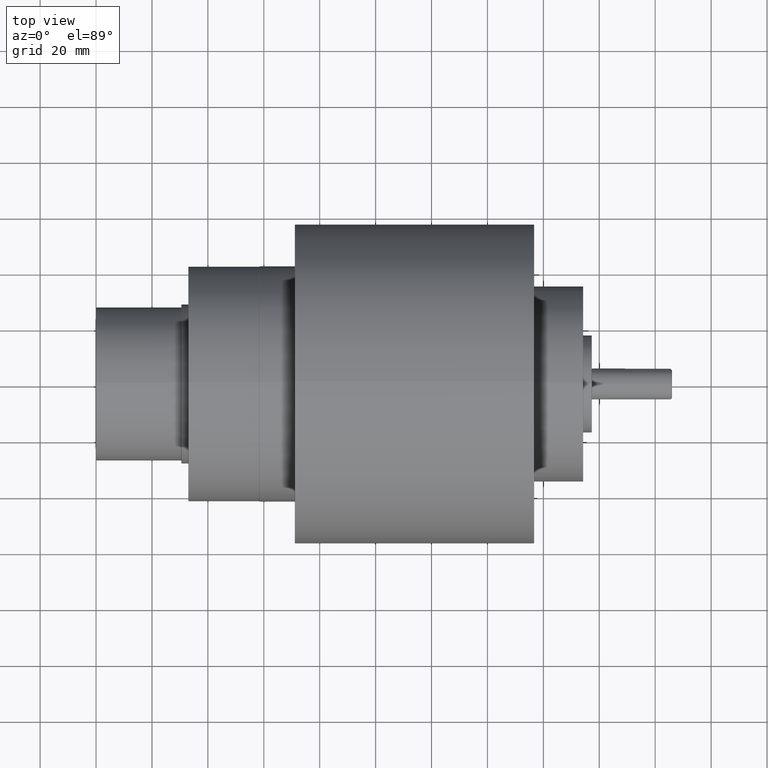
[diagram: clean part render]
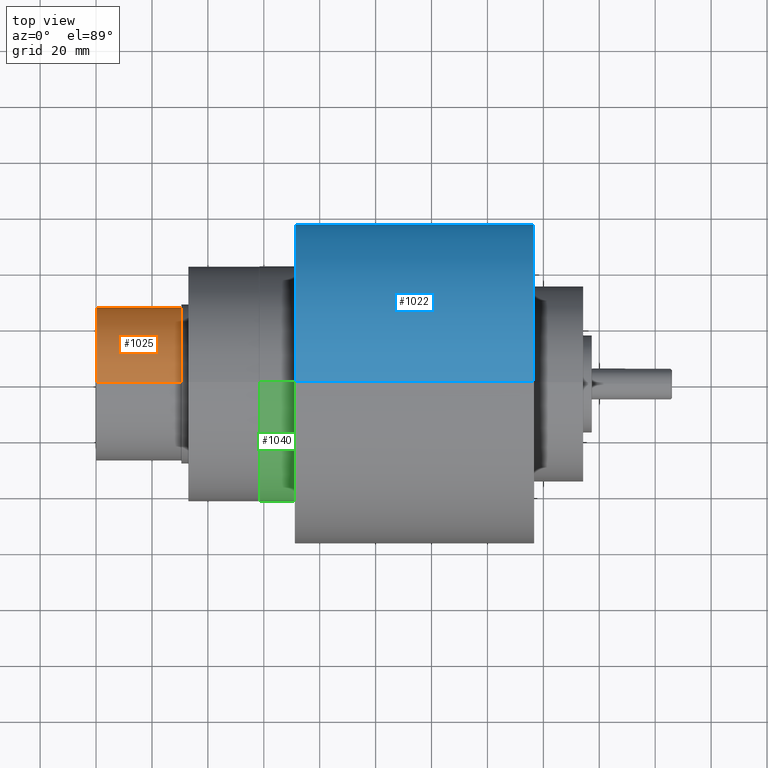
[diagram: same view with three faces highlighted in distinct colors, each labeled with its STEP entity id]
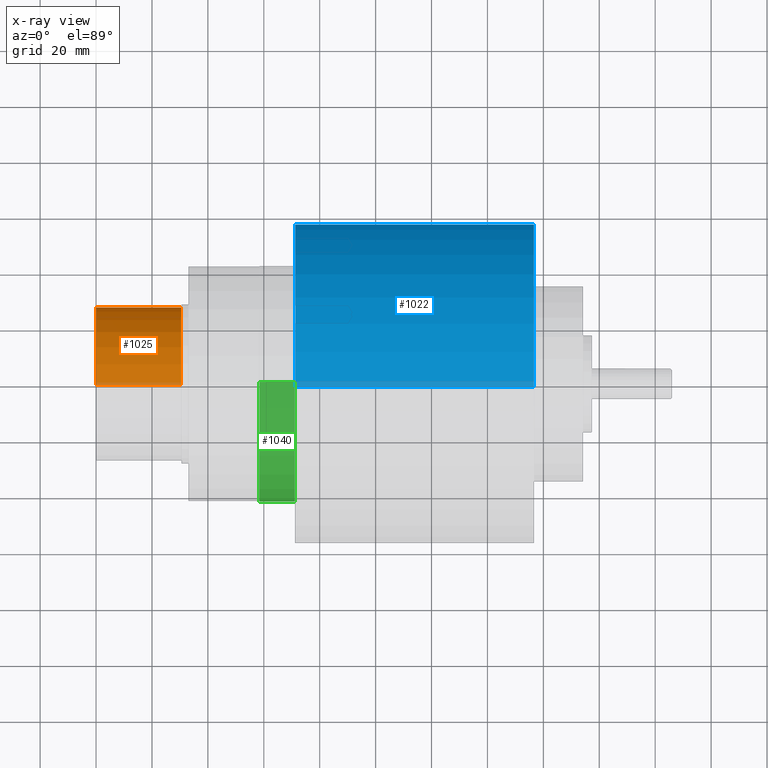
[diagram: x-ray of the same camera — body ghosted, the three highlighted faces saturated]
A machine part, top view with three faces highlighted in distinct colors.
The next image is the same camera in x-ray (body ghosted, the three faces saturated) — at least one of them is partly hidden behind the body in this view.
Their STEP definitions:

[orange] entity #1025 — the highlighted cylindrical surface (partial cylindrical patch) has radius 27.4955 mm, axis along (-1, -0, -0).
#3 = EDGE_CURVE ( 'NONE', #253, #288, #1199, .T. ) ;
#4 = EDGE_CURVE ( 'NONE', #254, #253, #1207, .T. ) ;
#5 = EDGE_CURVE ( 'NONE', #254, #287, #1203, .T. ) ;
#121 = CARTESIAN_POINT ( 'NONE',  ( 1.196000000000000200, 0.0000000000000000000, 1.082500000000000200 ) ) ;
#122 = CARTESIAN_POINT ( 'NONE',  ( 1.196000000000000200, 1.325680160077009700E-016, -1.082500000000000200 ) ) ;
#253 = VERTEX_POINT ( 'NONE', #122 ) ;
#254 = VERTEX_POINT ( 'NONE', #121 ) ;
#287 = VERTEX_POINT ( 'NONE', #1592 ) ;
#288 = VERTEX_POINT ( 'NONE', #1593 ) ;
#360 = CARTESIAN_POINT ( 'NONE',  ( 1.201000000000000100, 1.325680160077009700E-016, -1.082500000000000200 ) ) ;
#363 = DIRECTION ( 'NONE',  ( -1.000000000000000000, -0.0000000000000000000, -0.0000000000000000000 ) ) ;
#364 = CARTESIAN_POINT ( 'NONE',  ( 1.196000000000000200, 0.0000000000000000000, 0.0000000000000000000 ) ) ;
#365 = DIRECTION ( 'NONE',  ( -1.000000000000000000, 0.0000000000000000000, 0.0000000000000000000 ) ) ;
#366 = DIRECTION ( 'NONE',  ( 0.0000000000000000000, 0.0000000000000000000, 1.000000000000000000 ) ) ;
#367 = CARTESIAN_POINT ( 'NONE',  ( 1.201000000000000100, 0.0000000000000000000, 1.082500000000000200 ) ) ;
#368 = DIRECTION ( 'NONE',  ( -1.000000000000000000, -0.0000000000000000000, -0.0000000000000000000 ) ) ;
#571 = EDGE_CURVE ( 'NONE', #288, #287, #2240, .T. ) ;
#641 = AXIS2_PLACEMENT_3D ( 'NONE', #364, #365, #366 ) ;
#711 = EDGE_LOOP ( 'NONE', ( #866, #867, #868, #869 ) ) ;
#866 = ORIENTED_EDGE ( 'NONE', *, *, #4, .T. ) ;
#867 = ORIENTED_EDGE ( 'NONE', *, *, #3, .T. ) ;
#868 = ORIENTED_EDGE ( 'NONE', *, *, #571, .T. ) ;
#869 = ORIENTED_EDGE ( 'NONE', *, *, #5, .F. ) ;
#1025 = ADVANCED_FACE ( 'NONE', ( #2384 ), #2393, .T. ) ;
#1199 = LINE ( 'NONE', #360, #1202 ) ;
#1202 = VECTOR ( 'NONE', #363, 39.37007874015748100 ) ;
#1203 = LINE ( 'NONE', #367, #1208 ) ;
#1207 = CIRCLE ( 'NONE', #641, 1.082500000000000200 ) ;
#1208 = VECTOR ( 'NONE', #368, 39.37007874015748100 ) ;
#1436 = AXIS2_PLACEMENT_3D ( 'NONE', #1861, #1862, #1863 ) ;
#1511 = AXIS2_PLACEMENT_3D ( 'NONE', #2125, #2124, #2120 ) ;
#1592 = CARTESIAN_POINT ( 'NONE',  ( 0.004999999999999946300, 0.0000000000000000000, 1.082500000000000200 ) ) ;
#1593 = CARTESIAN_POINT ( 'NONE',  ( 0.004999999999999946300, 1.325680160077009700E-016, -1.082500000000000200 ) ) ;
#1861 = CARTESIAN_POINT ( 'NONE',  ( 0.004999999999999946300, 0.0000000000000000000, 0.0000000000000000000 ) ) ;
#1862 = DIRECTION ( 'NONE',  ( 1.000000000000000000, 0.0000000000000000000, 0.0000000000000000000 ) ) ;
#1863 = DIRECTION ( 'NONE',  ( 0.0000000000000000000, 0.0000000000000000000, -1.000000000000000000 ) ) ;
#2120 = DIRECTION ( 'NONE',  ( 0.0000000000000000000, 0.0000000000000000000, 1.000000000000000000 ) ) ;
#2124 = DIRECTION ( 'NONE',  ( -1.000000000000000000, -0.0000000000000000000, -0.0000000000000000000 ) ) ;
#2125 = CARTESIAN_POINT ( 'NONE',  ( 1.201000000000000100, 0.0000000000000000000, 0.0000000000000000000 ) ) ;
#2240 = CIRCLE ( 'NONE', #1436, 1.082500000000000200 ) ;
#2384 = FACE_OUTER_BOUND ( 'NONE', #711, .T. ) ;
#2393 = CYLINDRICAL_SURFACE ( 'NONE', #1511, 1.082500000000000200 ) ;

[blue] entity #1022 — the highlighted cylindrical surface (partial cylindrical patch) has radius 57.15 mm, axis along (-1, -0, -0).
#81 = DIRECTION ( 'NONE',  ( -1.000000000000000000, -0.0000000000000000000, -0.0000000000000000000 ) ) ;
#82 = CARTESIAN_POINT ( 'NONE',  ( 12.53396103067892900, 2.755455298081544800E-016, -2.250000000000000400 ) ) ;
#97 = CARTESIAN_POINT ( 'NONE',  ( 6.165000000000000900, 2.755455298081544800E-016, -2.250000000000000400 ) ) ;
#98 = CARTESIAN_POINT ( 'NONE',  ( 12.53396103067892900, 0.0000000000000000000, 2.250000000000000400 ) ) ;
#99 = DIRECTION ( 'NONE',  ( -1.000000000000000000, -0.0000000000000000000, -0.0000000000000000000 ) ) ;
#102 = CARTESIAN_POINT ( 'NONE',  ( 6.165000000000000900, 0.0000000000000000000, 2.250000000000000400 ) ) ;
#103 = CARTESIAN_POINT ( 'NONE',  ( 2.805000000000000200, 2.755455298081544800E-016, -2.250000000000000400 ) ) ;
#104 = CARTESIAN_POINT ( 'NONE',  ( 2.805000000000000200, 0.0000000000000000000, 2.250000000000000400 ) ) ;
#168 = EDGE_CURVE ( 'NONE', #273, #271, #1267, .T. ) ;
#172 = EDGE_CURVE ( 'NONE', #274, #272, #1275, .T. ) ;
#271 = VERTEX_POINT ( 'NONE', #104 ) ;
#272 = VERTEX_POINT ( 'NONE', #103 ) ;
#273 = VERTEX_POINT ( 'NONE', #102 ) ;
#274 = VERTEX_POINT ( 'NONE', #97 ) ;
#555 = EDGE_CURVE ( 'NONE', #272, #271, #2224, .T. ) ;
#569 = EDGE_CURVE ( 'NONE', #273, #274, #2238, .T. ) ;
#670 = EDGE_LOOP ( 'NONE', ( #854, #855, #856, #857 ) ) ;
#854 = ORIENTED_EDGE ( 'NONE', *, *, #569, .T. ) ;
#855 = ORIENTED_EDGE ( 'NONE', *, *, #172, .T. ) ;
#856 = ORIENTED_EDGE ( 'NONE', *, *, #555, .T. ) ;
#857 = ORIENTED_EDGE ( 'NONE', *, *, #168, .F. ) ;
#1022 = ADVANCED_FACE ( 'NONE', ( #2378 ), #2387, .T. ) ;
#1267 = LINE ( 'NONE', #98, #1274 ) ;
#1274 = VECTOR ( 'NONE', #99, 39.37007874015748100 ) ;
#1275 = LINE ( 'NONE', #82, #1276 ) ;
#1276 = VECTOR ( 'NONE', #81, 39.37007874015748100 ) ;
#1420 = AXIS2_PLACEMENT_3D ( 'NONE', #1813, #1814, #1815 ) ;
#1434 = AXIS2_PLACEMENT_3D ( 'NONE', #1855, #1856, #1857 ) ;
#1508 = AXIS2_PLACEMENT_3D ( 'NONE', #2116, #2115, #2111 ) ;
#1813 = CARTESIAN_POINT ( 'NONE',  ( 2.805000000000000200, 0.0000000000000000000, 0.0000000000000000000 ) ) ;
#1814 = DIRECTION ( 'NONE',  ( 1.000000000000000000, 0.0000000000000000000, 0.0000000000000000000 ) ) ;
#1815 = DIRECTION ( 'NONE',  ( 0.0000000000000000000, 0.0000000000000000000, -1.000000000000000000 ) ) ;
#1855 = CARTESIAN_POINT ( 'NONE',  ( 6.165000000000000900, 0.0000000000000000000, 0.0000000000000000000 ) ) ;
#1856 = DIRECTION ( 'NONE',  ( -1.000000000000000000, -0.0000000000000000000, -0.0000000000000000000 ) ) ;
#1857 = DIRECTION ( 'NONE',  ( 0.0000000000000000000, 0.0000000000000000000, -1.000000000000000000 ) ) ;
#2111 = DIRECTION ( 'NONE',  ( 0.0000000000000000000, 0.0000000000000000000, 1.000000000000000000 ) ) ;
#2115 = DIRECTION ( 'NONE',  ( -1.000000000000000000, -0.0000000000000000000, -0.0000000000000000000 ) ) ;
#2116 = CARTESIAN_POINT ( 'NONE',  ( 12.53396103067892900, 0.0000000000000000000, 0.0000000000000000000 ) ) ;
#2224 = CIRCLE ( 'NONE', #1420, 2.250000000000000400 ) ;
#2238 = CIRCLE ( 'NONE', #1434, 2.250000000000000400 ) ;
#2378 = FACE_OUTER_BOUND ( 'NONE', #670, .T. ) ;
#2387 = CYLINDRICAL_SURFACE ( 'NONE', #1508, 2.250000000000000400 ) ;

[green] entity #1040 — the highlighted cylindrical surface (partial cylindrical patch) has radius 42.0751 mm, axis along (-1, -0, -0).
#15 = EDGE_CURVE ( 'NONE', #268, #290, #1222, .T. ) ;
#17 = EDGE_CURVE ( 'NONE', #267, #289, #1216, .T. ) ;
#107 = CARTESIAN_POINT ( 'NONE',  ( 2.794999999999999900, 2.028627422787590800E-016, -1.656500000000000500 ) ) ;
#108 = CARTESIAN_POINT ( 'NONE',  ( 2.794999999999999900, 0.0000000000000000000, 1.656500000000000500 ) ) ;
#267 = VERTEX_POINT ( 'NONE', #108 ) ;
#268 = VERTEX_POINT ( 'NONE', #107 ) ;
#289 = VERTEX_POINT ( 'NONE', #1594 ) ;
#290 = VERTEX_POINT ( 'NONE', #1595 ) ;
#401 = CARTESIAN_POINT ( 'NONE',  ( 7.485289532142065400, 2.028627422787590800E-016, -1.656500000000000500 ) ) ;
#407 = DIRECTION ( 'NONE',  ( -1.000000000000000000, -0.0000000000000000000, -0.0000000000000000000 ) ) ;
#411 = CARTESIAN_POINT ( 'NONE',  ( 7.485289532142065400, 0.0000000000000000000, 1.656500000000000500 ) ) ;
#412 = DIRECTION ( 'NONE',  ( -1.000000000000000000, -0.0000000000000000000, -0.0000000000000000000 ) ) ;
#551 = EDGE_CURVE ( 'NONE', #268, #267, #2220, .T. ) ;
#585 = EDGE_CURVE ( 'NONE', #289, #290, #2254, .T. ) ;
#741 = EDGE_LOOP ( 'NONE', ( #950, #951, #952, #953 ) ) ;
#950 = ORIENTED_EDGE ( 'NONE', *, *, #15, .F. ) ;
#951 = ORIENTED_EDGE ( 'NONE', *, *, #551, .T. ) ;
#952 = ORIENTED_EDGE ( 'NONE', *, *, #17, .T. ) ;
#953 = ORIENTED_EDGE ( 'NONE', *, *, #585, .T. ) ;
#1040 = ADVANCED_FACE ( 'NONE', ( #2427 ), #2431, .T. ) ;
#1214 = VECTOR ( 'NONE', #407, 39.37007874015748100 ) ;
#1216 = LINE ( 'NONE', #411, #1218 ) ;
#1218 = VECTOR ( 'NONE', #412, 39.37007874015748100 ) ;
#1222 = LINE ( 'NONE', #401, #1214 ) ;
#1416 = AXIS2_PLACEMENT_3D ( 'NONE', #1801, #1802, #1803 ) ;
#1450 = AXIS2_PLACEMENT_3D ( 'NONE', #1903, #1904, #1905 ) ;
#1526 = AXIS2_PLACEMENT_3D ( 'NONE', #2178, #2177, #2175 ) ;
#1594 = CARTESIAN_POINT ( 'NONE',  ( 2.300000000000000300, 0.0000000000000000000, 1.656500000000000500 ) ) ;
#1595 = CARTESIAN_POINT ( 'NONE',  ( 2.300000000000000300, 2.028627422787590800E-016, -1.656500000000000500 ) ) ;
#1801 = CARTESIAN_POINT ( 'NONE',  ( 2.794999999999999900, 0.0000000000000000000, 0.0000000000000000000 ) ) ;
#1802 = DIRECTION ( 'NONE',  ( -1.000000000000000000, -0.0000000000000000000, -0.0000000000000000000 ) ) ;
#1803 = DIRECTION ( 'NONE',  ( 0.0000000000000000000, 0.0000000000000000000, -1.000000000000000000 ) ) ;
#1903 = CARTESIAN_POINT ( 'NONE',  ( 2.300000000000000300, 0.0000000000000000000, 0.0000000000000000000 ) ) ;
#1904 = DIRECTION ( 'NONE',  ( 1.000000000000000000, 0.0000000000000000000, 0.0000000000000000000 ) ) ;
#1905 = DIRECTION ( 'NONE',  ( 0.0000000000000000000, 0.0000000000000000000, -1.000000000000000000 ) ) ;
#2175 = DIRECTION ( 'NONE',  ( 0.0000000000000000000, 0.0000000000000000000, 1.000000000000000000 ) ) ;
#2177 = DIRECTION ( 'NONE',  ( -1.000000000000000000, -0.0000000000000000000, -0.0000000000000000000 ) ) ;
#2178 = CARTESIAN_POINT ( 'NONE',  ( 7.485289532142065400, 0.0000000000000000000, 0.0000000000000000000 ) ) ;
#2220 = CIRCLE ( 'NONE', #1416, 1.656500000000000500 ) ;
#2254 = CIRCLE ( 'NONE', #1450, 1.656500000000000500 ) ;
#2427 = FACE_OUTER_BOUND ( 'NONE', #741, .T. ) ;
#2431 = CYLINDRICAL_SURFACE ( 'NONE', #1526, 1.656500000000000500 ) ;